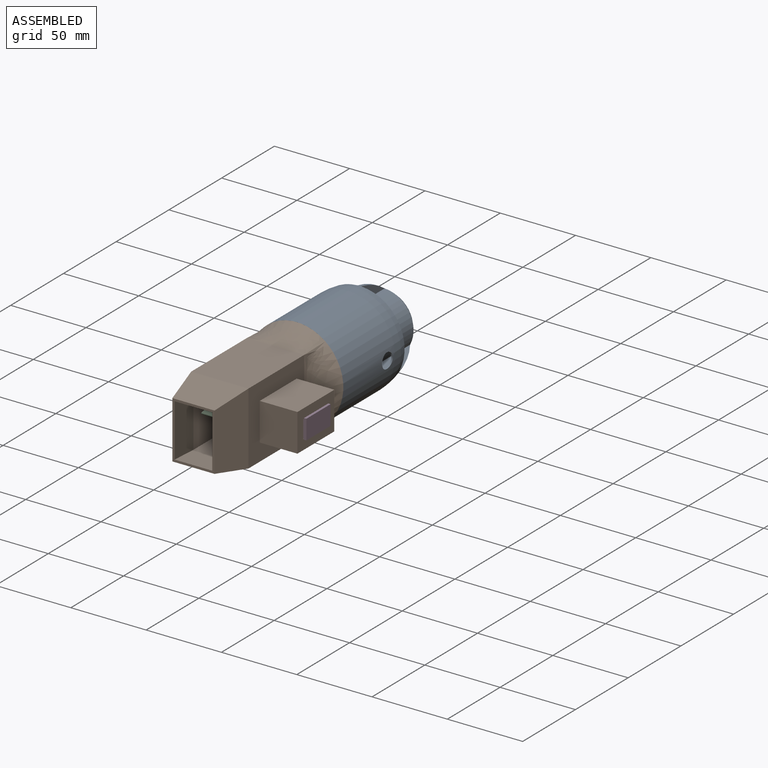
[diagram: assembled view]
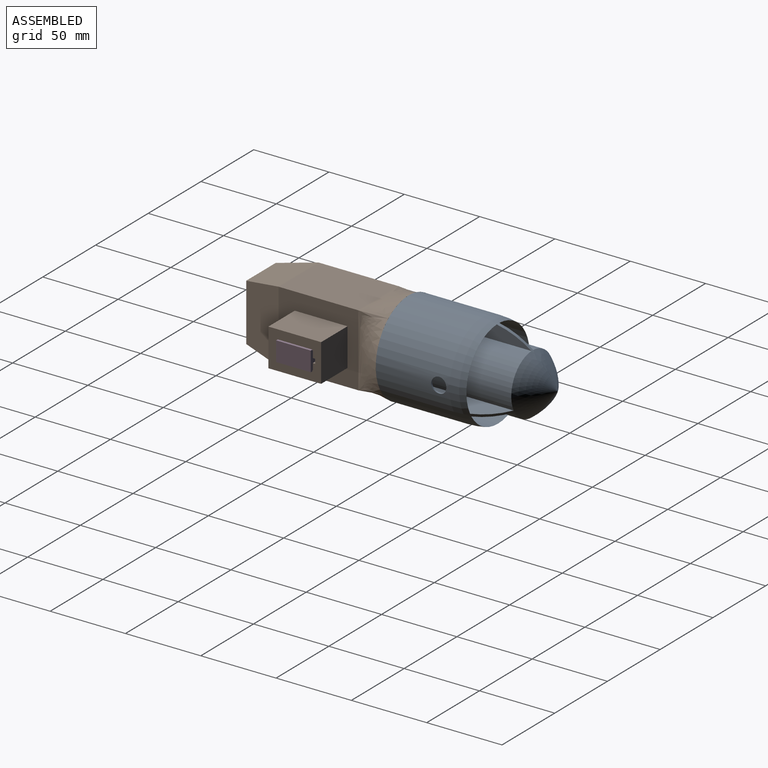
[diagram: assembled view, second angle]
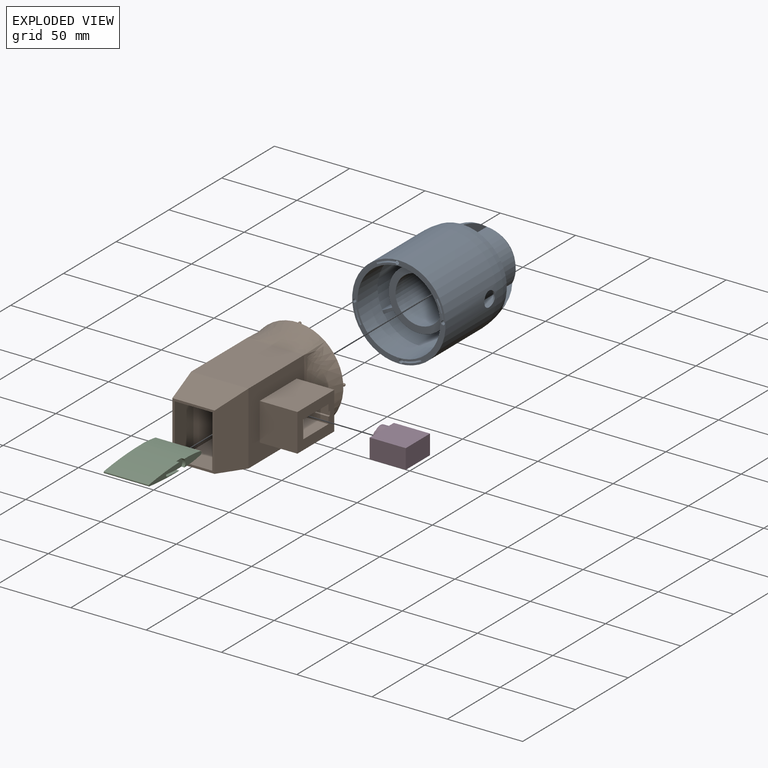
[diagram: exploded view]
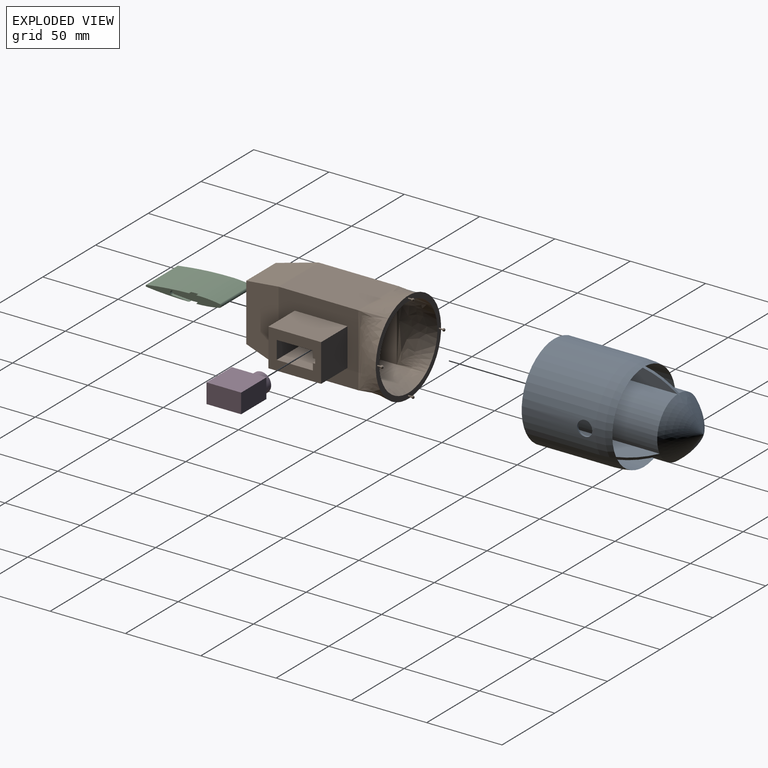
[diagram: exploded view, second angle]
ASSEMBLY  parts=4 mates=3
PART A: 68 faces, bbox 65.5x99x65.5 mm
  f0: cylinder r=28.75mm len=2.13mm, axis (0,1,0), area 0.2mm2, adj f2,f7,f8,f33
  f1: cylinder r=29.75mm len=2.13mm, axis (0,1,0), area 0.2mm2, adj f4,f7,f8,f33
  f2: cylinder r=1.25mm len=3mm, axis (0,-1,0), area 7.6mm2, adj f0,f5,f6,f7,f33
  f3: plane 1.59x0.32mm, normal (0,-1,0), area 0.3mm2, adj f4,f7
  f4: cylinder r=1.25mm len=3mm, axis (0,-1,0), area 8.3mm2, adj f1,f3,f7,f9,f33
  f5: plane 1.4x0.25mm, normal (0,-1,0), area 0.2mm2, adj f2,f7
  f6: cylinder r=28.75mm len=12.03mm, axis (0,1,0), area 27.1mm2, adj f2,f7,f10,f33
  f7: torus R=29.25mm, axis (0,1,0), area 76.4mm2, adj f0,f1,f2,f3,f4,f5,f6,f8
  f8: plane 4x2mm, normal (0,0,-1), area 5.2mm2, adj f0,f1,f7,f33
  f9: cylinder r=29.75mm len=12.44mm, axis (0,1,0), area 28mm2, adj f4,f7,f10,f33
  f10: plane 4x1.73mm, normal (-0.5,0,0.87), area 5.2mm2, adj f6,f7,f9,f33
  f11: cylinder r=28.75mm len=2.13mm, axis (0,1,0), area 0.2mm2, adj f13,f18,f19,f33
  f12: cylinder r=29.75mm len=2.13mm, axis (0,1,0), area 0.2mm2, adj f15,f18,f19,f33
  f13: cylinder r=1.25mm len=3mm, axis (0,-1,0), area 7.6mm2, adj f11,f16,f17,f18,f33
  f14: plane 1.59x0.32mm, normal (0,-1,0), area 0.3mm2, adj f15,f18
  f15: cylinder r=1.25mm len=3mm, axis (0,-1,0), area 8.3mm2, adj f12,f14,f18,f20,f33
  f16: plane 1.4x0.25mm, normal (0,-1,0), area 0.2mm2, adj f13,f18
  f17: cylinder r=28.75mm len=12.03mm, axis (0,1,0), area 27.1mm2, adj f13,f18,f21,f33
  f18: torus R=29.25mm, axis (0,1,0), area 76.4mm2, adj f11,f12,f13,f14,f15,f16,f17,f19
  f19: plane 4x2mm, normal (1,0,0), area 5.2mm2, adj f11,f12,f18,f33
  f20: cylinder r=29.75mm len=12.44mm, axis (0,1,0), area 28mm2, adj f15,f18,f21,f33
  f21: plane 4x1.73mm, normal (-0.87,0,-0.5), area 5.2mm2, adj f17,f18,f20,f33
  f22: cylinder r=28.75mm len=2.13mm, axis (0,1,0), area 0.2mm2, adj f24,f29,f30,f33
  f23: cylinder r=29.75mm len=2.13mm, axis (0,1,0), area 0.2mm2, adj f26,f29,f30,f33
  f24: cylinder r=1.25mm len=3mm, axis (0,-1,0), area 7.6mm2, adj f22,f27,f28,f29,f33
  f25: plane 1.59x0.32mm, normal (0,-1,0), area 0.3mm2, adj f26,f29
  f26: cylinder r=1.25mm len=3mm, axis (0,-1,0), area 8.3mm2, adj f23,f25,f29,f31,f33
  f27: plane 1.4x0.25mm, normal (0,-1,0), area 0.2mm2, adj f24,f29
  f28: cylinder r=28.75mm len=12.03mm, axis (0,1,0), area 27.1mm2, adj f24,f29,f32,f33
  f29: torus R=29.25mm, axis (0,1,0), area 76.4mm2, adj f22,f23,f24,f25,f26,f27,f28,f30
  f30: plane 4x2mm, normal (0,0,1), area 5.2mm2, adj f22,f23,f29,f33
  f31: cylinder r=29.75mm len=12.44mm, axis (0,1,0), area 28mm2, adj f26,f29,f32,f33
  f32: plane 4x1.73mm, normal (0.5,0,-0.87), area 5.2mm2, adj f28,f29,f31,f33
  f33: plane 62x62mm, normal (0,-1,0), area 572.1mm2, adj f0,f1,f2,f4,f6,f8,f9,f10
  f34: cylinder r=28.75mm len=2.13mm, axis (0,1,0), area 0.2mm2, adj f33,f60,f63,f66
  f35: cylinder r=29.75mm len=2.13mm, axis (0,1,0), area 0.2mm2, adj f33,f60,f63,f64
  f36: revolved ~62x62mm, area 3957.1mm2, adj f38,f39,f40,f41,f42,f43,f44,f45
  f37: plane 48.69x47.5mm, normal (0,-1,0), area 544.6mm2, adj f38,f39,f40,f41,f42,f43,f45,f46
  f38: plane 63.27x8.45mm, normal (-0.53,0,-0.85), area 542.2mm2, adj f36,f37,f39,f51,f54
  f39: cylinder r=20mm len=63.27mm, axis (0,-1,0), area 2549.1mm2, adj f36,f37,f38,f40
  f40: plane 63.27x8.45mm, normal (0.53,0,-0.85), area 542.2mm2, adj f36,f37,f39,f51,f54
  f41: plane 63.27x8.85mm, normal (-0.46,0,0.89), area 542.2mm2, adj f36,f37,f42,f47,f53
  f42: cylinder r=20mm len=63.27mm, axis (0,-1,0), area 2549.1mm2, adj f36,f37,f41,f43
  f43: plane 63.27x9.99mm, normal (-1,0,-0.04), area 542.2mm2, adj f36,f37,f42,f47,f53
  f44: cylinder r=30mm len=43.92mm, axis (0,-1,0), area 2369.8mm2, adj f36,f45,f50,f52,f58
  f45: plane 63.27x9.99mm, normal (1,0,-0.04), area 542.2mm2, adj f36,f37,f44,f46,f52
  f46: cylinder r=20mm len=63.27mm, axis (0,-1,0), area 2469.9mm2, adj f36,f37,f45,f50,f57
  f47: cylinder r=30mm len=43.92mm, axis (0,-1,0), area 2448.6mm2, adj f36,f41,f43,f53
  f48: cylinder r=31mm len=62mm, axis (0,-1,0), area 9465.2mm2, adj f33,f36,f58
  f49: cylinder r=15.5mm len=31mm, axis (0,-1,0), area 2841.7mm2, adj f37,f56,f57
  f50: plane 63.27x8.85mm, normal (0.46,0,0.89), area 542.2mm2, adj f36,f37,f44,f46,f52
  f51: cylinder r=30mm len=50.72mm, axis (0,-1,0), area 2448.6mm2, adj f36,f38,f40,f54
  f52: plane 43.92x28.9mm, normal (0,1,0), area 144.8mm2, adj f44,f45,f50,f55
  f53: plane 43.92x28.9mm, normal (0,1,0), area 144.8mm2, adj f41,f43,f47,f55
  f54: plane 50.72x15.31mm, normal (0,1,0), area 144.8mm2, adj f38,f40,f51,f55
  f55: cylinder r=27.5mm len=55mm, axis (0,-1,0), area 3283mm2, adj f33,f37,f52,f53,f54
  f56: plane 31x31mm, normal (0,-1,0), area 754.8mm2, adj f49
  f57: cylinder r=5mm len=10mm, axis (1,0,0), area 144.3mm2, adj f46,f49
  f58: cylinder r=5mm len=10mm, axis (1,0,0), area 31.6mm2, adj f44,f48
  f59: cylinder r=28.75mm len=12.03mm, axis (0,1,0), area 27.1mm2, adj f33,f60,f62,f66
  f60: torus R=29.25mm, axis (0,1,0), area 76.4mm2, adj f34,f35,f59,f61,f62,f63,f64,f65
  f61: cylinder r=29.75mm len=12.44mm, axis (0,1,0), area 28mm2, adj f33,f60,f62,f64
  f62: plane 4x1.73mm, normal (0.87,0,0.5), area 5.2mm2, adj f33,f59,f60,f61
  f63: plane 4x2mm, normal (-1,0,0), area 5.2mm2, adj f33,f34,f35,f60
  f64: cylinder r=1.25mm len=3mm, axis (0,-1,0), area 8.3mm2, adj f33,f35,f60,f61,f65
  f65: plane 1.59x0.32mm, normal (0,-1,0), area 0.3mm2, adj f60,f64
  f66: cylinder r=1.25mm len=3mm, axis (0,-1,0), area 7.6mm2, adj f33,f34,f59,f60,f67
  f67: plane 1.4x0.25mm, normal (0,-1,0), area 0.2mm2, adj f60,f66
PART B: 51 faces, bbox 75.1x101.8x62.1 mm
  f0: sphere r=0.93mm, area 10.2mm2, adj f1
  f1: cylinder r=0.42mm len=2.18mm, axis (0,-1,0), area 5.8mm2, adj f0,f40
  f2: sphere r=0.93mm, area 10.2mm2, adj f3
  f3: cylinder r=0.42mm len=2.18mm, axis (0,-1,0), area 5.8mm2, adj f2,f40
  f4: sphere r=0.93mm, area 10.2mm2, adj f5
  f5: cylinder r=0.42mm len=2.18mm, axis (0,-1,0), area 5.8mm2, adj f4,f40
  f6: plane 18x12mm, normal (1,0,0), area 143.8mm2, adj f25,f26,f30,f36,f37
  f7: plane 12x7.5mm, normal (1,0,0), area 20mm2, adj f26,f30,f31,f32,f33,f34,f35,f36
  f8: plane 38x28mm, normal (0,-1,0), area 189mm2, adj f9,f10,f11,f12,f13,f14,f15,f16
  f9: plane 38x25mm, normal (0,-0.2,0.98), area 841.3mm2, adj f8,f10,f12,f21
  f10: plane 48x25mm, normal (-0.98,-0.2,0), area 1096.3mm2, adj f8,f9,f11,f22
  f11: plane 38x25mm, normal (0,-0.2,-0.98), area 841.3mm2, adj f8,f10,f12,f23
  f12: plane 48x25mm, normal (0.98,-0.2,0), area 1096.3mm2, adj f8,f9,f11,f20
  f13: plane 35x25mm, normal (0,0.2,-0.98), area 764.9mm2, adj f8,f14,f16,f17
  f14: plane 45x25mm, normal (0.98,0.2,0), area 1019.8mm2, adj f8,f13,f15,f24
  f15: plane 35x25mm, normal (0,0.2,0.98), area 764.9mm2, adj f8,f14,f16,f19
  f16: plane 45x25mm, normal (-0.98,0.2,0), area 1019.8mm2, adj f8,f13,f15,f18
  f17: plane 53x35mm, normal (0,0,-1), area 1855mm2, adj f13,f18,f24,f45
  f18: plane 53x45mm, normal (-1,0,0), area 2256.3mm2, adj f16,f17,f19,f25,f26,f48
  f19: plane 53x35mm, normal (0,0,1), area 1855mm2, adj f15,f18,f24,f47
  f20: plane 53x48mm, normal (1,0,0), area 1669mm2, adj f12,f21,f23,f27,f28,f29,f38,f44
  f21: plane 53x38mm, normal (0,0,1), area 2014mm2, adj f9,f20,f22,f41
  f22: plane 53x48mm, normal (-1,0,0), area 2544mm2, adj f10,f21,f23,f42
  f23: plane 53x38mm, normal (0,0,-1), area 2014mm2, adj f11,f20,f22,f43
  f24: plane 53x45mm, normal (1,0,0), area 2385mm2, adj f14,f17,f19,f46
  f25: cylinder r=3mm len=6mm, axis (1,0,0), area 16.4mm2, adj f6,f18,f26
  f26: cylinder r=6mm len=12mm, axis (1,0,0), area 47.5mm2, adj f6,f7,f18,f25
  f27: plane 25x25mm, normal (0,1,0), area 625mm2, adj f20,f28,f38,f39
  f28: plane 35x25mm, normal (0,0,1), area 875mm2, adj f20,f27,f29,f39
  f29: plane 25x25mm, normal (0,-1,0), area 625mm2, adj f20,f28,f38,f39
  f30: plane 25x24mm, normal (0,0,-1), area 600mm2, adj f6,f7,f31,f37,f39
  f31: plane 25x4.5mm, normal (0,-1,0), area 112.5mm2, adj f7,f30,f32,f39
  f32: plane 25x1.5mm, normal (0,0,-1), area 37.5mm2, adj f7,f31,f33,f39
  f33: plane 25x3mm, normal (0,-1,0), area 75mm2, adj f7,f32,f34,f39
  f34: plane 25x1.5mm, normal (0,0,1), area 37.5mm2, adj f7,f33,f35,f39
  f35: plane 25x4.5mm, normal (0,-1,0), area 112.5mm2, adj f7,f34,f36,f39
  f36: plane 25x24mm, normal (0,0,1), area 600mm2, adj f6,f7,f35,f37,f39
  f37: plane 25x12mm, normal (0,1,0), area 300mm2, adj f6,f30,f36,f39
  f38: plane 35x25mm, normal (0,0,-1), area 875mm2, adj f20,f27,f29,f39
  f39: plane 35x25mm, normal (1,0,0), area 582.5mm2, adj f27,f28,f29,f30,f31,f32,f33,f34
  f40: plane 62.03x62.03mm, normal (0,1,0), area 641mm2, adj f1,f3,f5,f41,f42,f43,f44,f45
  f41: bspline ~43.5x19.9mm, area 874.2mm2, adj f21,f40,f42,f44
  f42: bspline ~48.47x19.9mm, area 1038.7mm2, adj f22,f40,f41,f43
  f43: bspline ~43.5x19.9mm, area 874.2mm2, adj f23,f40,f42,f44
  f44: bspline ~48.47x19.9mm, area 1038.7mm2, adj f20,f40,f41,f43
  f45: bspline ~39.21x19.9mm, area 775.7mm2, adj f17,f40,f46,f48
  f46: bspline ~45x19.9mm, area 919.6mm2, adj f24,f40,f45,f47
  f47: bspline ~39.21x19.9mm, area 775.7mm2, adj f19,f40,f46,f48
  f48: bspline ~45x19.9mm, area 919.6mm2, adj f18,f40,f45,f47
  f49: cylinder r=0.42mm len=2.18mm, axis (0,-1,0), area 5.8mm2, adj f40,f50
  f50: sphere r=0.93mm, area 10.2mm2, adj f49
PART C: 16 faces, bbox 50x30x5.2 mm
  f0: cylinder r=240.71mm len=36.88mm, axis (0,1,0), area 1099.3mm2, adj f1,f2,f3,f7,f8,f11,f12,f15
  f1: plane 16.37x5.14mm, normal (0,1,0), area 63.3mm2, adj f0,f4,f5,f6,f7,f12
  f2: plane 28.87x5.14mm, normal (0,1,0), area 58.5mm2, adj f0,f3,f4,f9,f10,f11,f13,f14
  f3: cylinder r=0.62mm len=30mm, axis (0,1,0), area 58.9mm2, adj f0,f2,f4,f8
  f4: cylinder r=240.71mm len=36.88mm, axis (0,1,0), area 1099.3mm2, adj f1,f2,f3,f5,f8,f12,f13,f15
  f5: cylinder r=82mm len=30mm, axis (0,1,0), area 339.8mm2, adj f1,f4,f6,f8
  f6: cylinder r=1.25mm len=30mm, axis (0,1,0), area 117.8mm2, adj f1,f5,f7,f8
  f7: cylinder r=82mm len=30mm, axis (0,1,0), area 339.8mm2, adj f0,f1,f6,f8
  f8: plane 50x5.16mm, normal (0,-1,0), area 198.4mm2, adj f0,f3,f4,f5,f6,f7
  f9: cylinder r=1.5mm len=3mm, axis (0,1,0), area 9.4mm2, adj f2,f10,f14,f15
  f10: plane 11.05x2mm, normal (-0.09,0,1), area 22.2mm2, adj f2,f9,f11,f15
  f11: cylinder r=3.5mm len=2mm, axis (0,1,0), area 0.2mm2, adj f0,f2,f10,f15
  f12: cylinder r=3.5mm len=5.14mm, axis (0,1,0), area 11.5mm2, adj f0,f1,f4,f15
  f13: cylinder r=3.5mm len=2mm, axis (0,1,0), area 0.2mm2, adj f2,f4,f14,f15
  f14: plane 11.05x2mm, normal (-0.09,0,-1), area 22.2mm2, adj f2,f9,f13,f15
  f15: plane 18.5x5.16mm, normal (0,1,0), area 76.6mm2, adj f0,f4,f9,f10,f11,f12,f13,f14
PART D: 13 faces, bbox 23x13x31.5 mm
  f0: plane 24x23mm, normal (0,1,0), area 552mm2, adj f2,f3,f4,f5,f6
  f1: plane 24x23mm, normal (0,-1,0), area 552mm2, adj f2,f4,f5,f6,f7
  f2: plane 16.5x13mm, normal (0,0,1), area 137.5mm2, adj f0,f1,f4,f8,f9
  f3: plane 6.5x6.5mm, normal (0,0,1), area 9.1mm2, adj f0,f5,f8
  f4: plane 24x13mm, normal (1,0,0), area 312mm2, adj f0,f1,f2,f6
  f5: plane 24x13mm, normal (-1,0,0), area 312mm2, adj f0,f1,f3,f6,f7
  f6: plane 23x13mm, normal (0,0,-1), area 299mm2, adj f0,f1,f4,f5
  f7: plane 6.5x6.5mm, normal (0,0,1), area 9.1mm2, adj f1,f5,f8
  f8: cylinder r=6.5mm len=13mm, axis (0,0,-1), area 161.1mm2, adj f2,f3,f7,f9,f10
  f9: cylinder r=2.5mm len=5mm, axis (0,0,-1), area 39.7mm2, adj f2,f8,f10
  f10: plane 15.5x13mm, normal (0,0,1), area 123.7mm2, adj f8,f9,f11
  f11: cylinder r=2.5mm len=5mm, axis (0,0,-1), area 47.1mm2, adj f10,f12
  f12: plane 5x5mm, normal (0,0,1), area 19.6mm2, adj f11
PLACE A t=(20.09,-16.02,42.72)mm
PLACE B t=(20.09,-16.02,42.72)mm
PLACE C rot(axis=(0.01,0.01,-1),90deg) t=(36.19,11.2,42.6)mm
PLACE D rot(axis=(0.58,-0.58,-0.58),120deg) t=(65.69,12.45,42.72)mm fixed
MATE revolute D.f11 <-> C.f11  axis (-1,0,0) through (34.19,17.45,42.72)mm
MATE parallel B.f6 <-> D.f2  axis (1,0,0) through (39.09,6.49,42.72)mm
MATE parallel A.f44 <-> B.f40  axis (0,-1,0) through (20.09,56.88,42.72)mm
